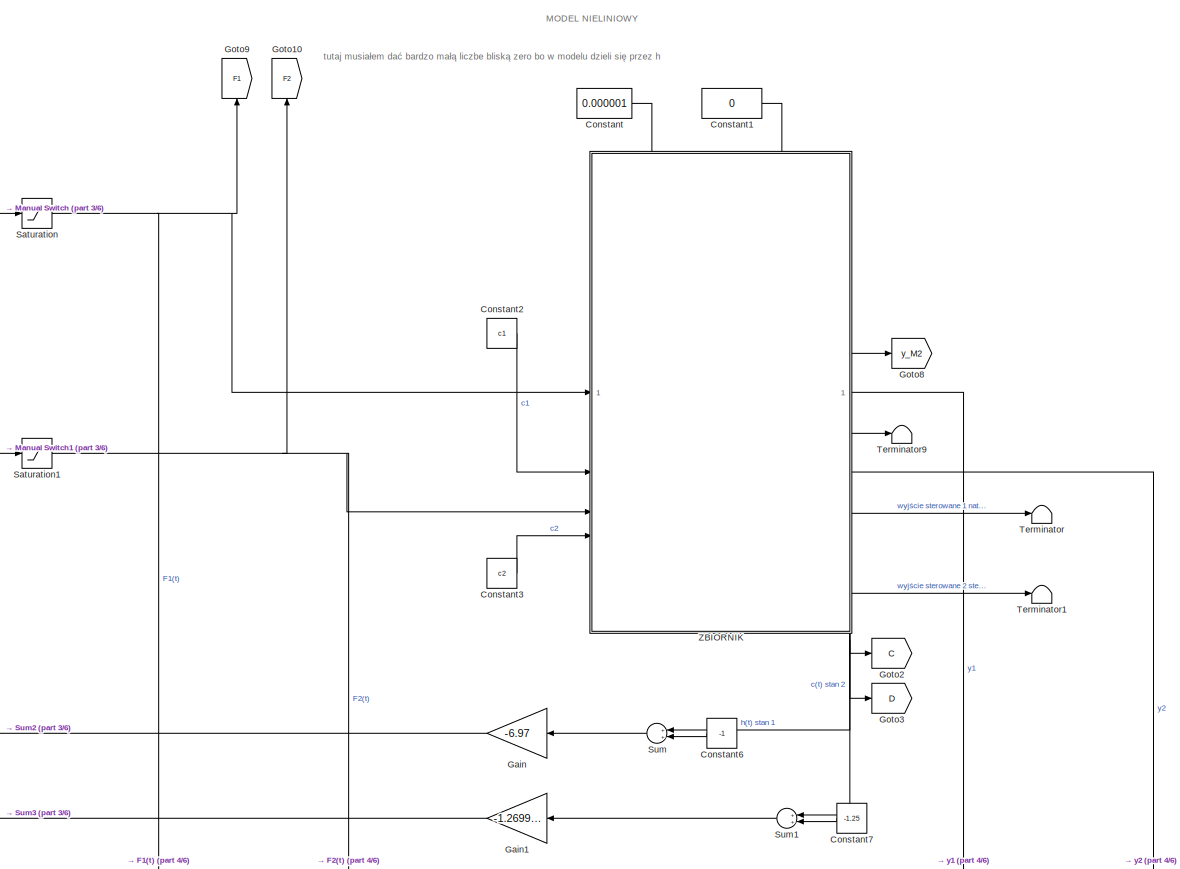
[diagram: root canvas - part 1/6, top center region]
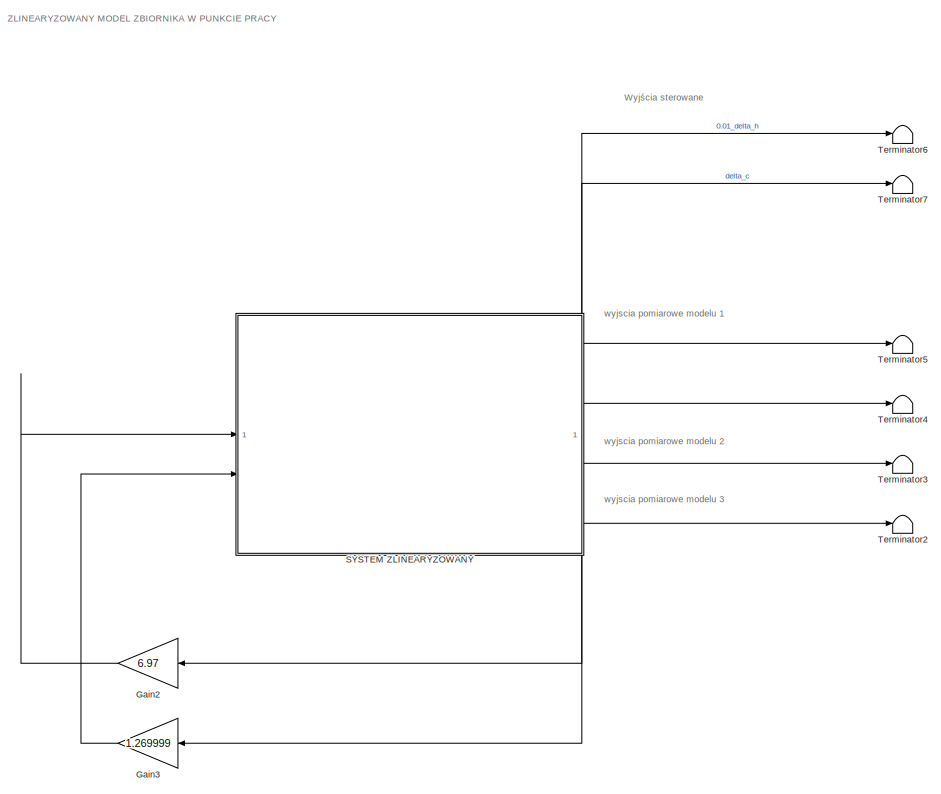
[diagram: root canvas - part 2/6, top right region]
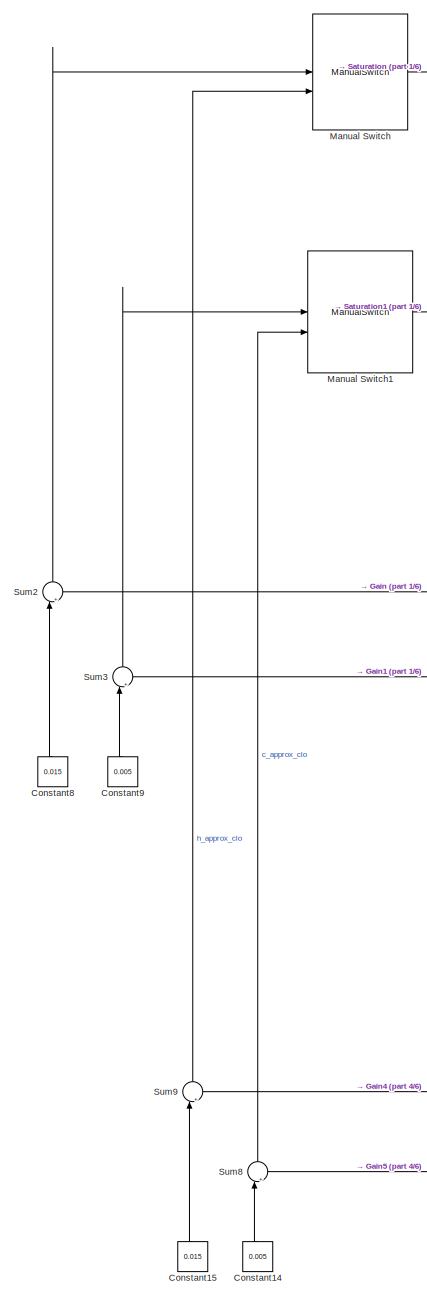
[diagram: root canvas - part 3/6, middle left region]
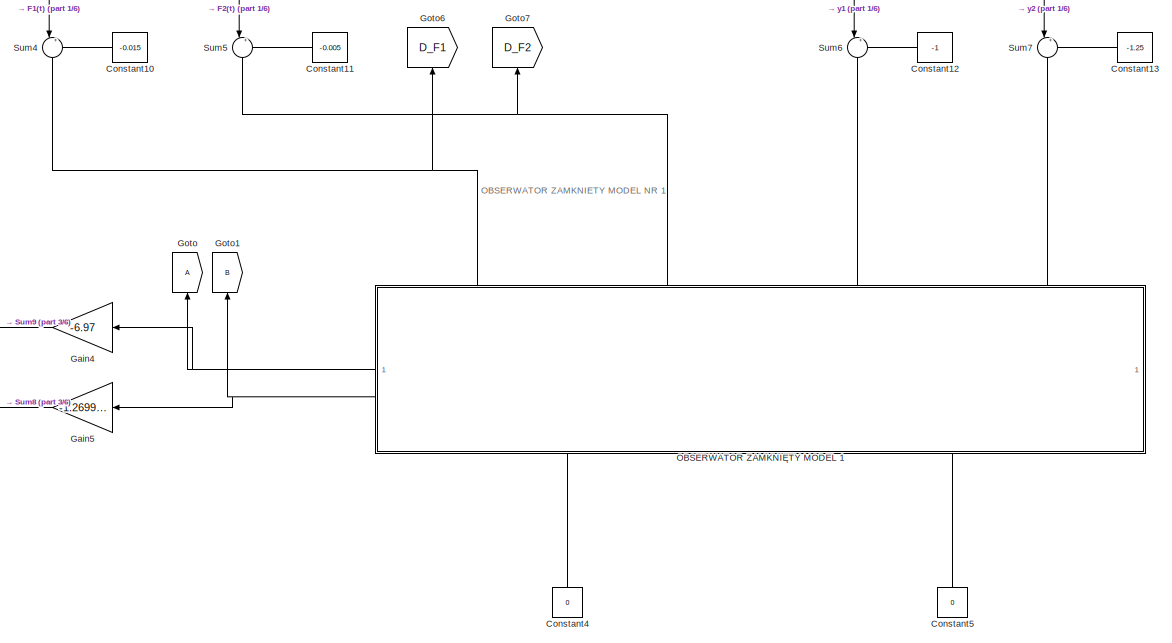
[diagram: root canvas - part 4/6, central region]
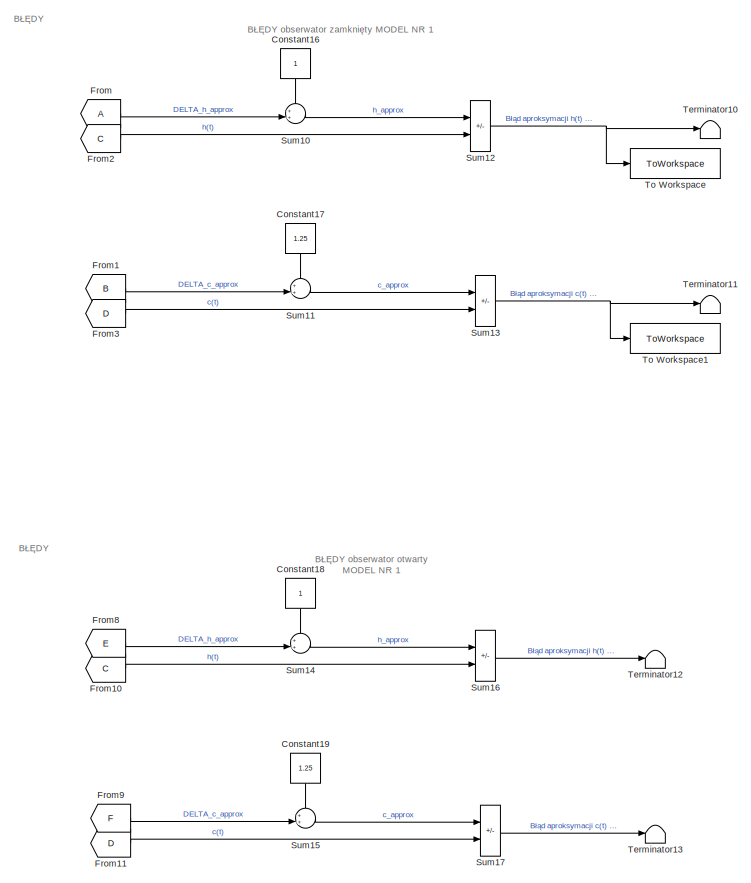
[diagram: root canvas - part 5/6, bottom right region]
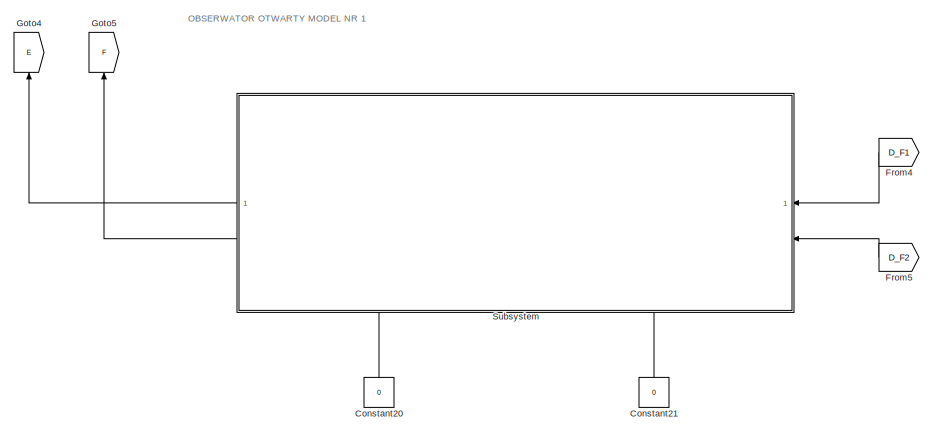
[diagram: root canvas - part 6/6, bottom center region]
MODEL slx_9ab2fc5ee544
KIND model
CONFIG AbsTol = auto
CONFIG EnableMultiTasking = off
CONFIG FixedStep = auto
CONFIG MaxStep = auto
CONFIG MinStep = auto
CONFIG RelTol = 1e-3
CONFIG SampleTimeConstraint = Unconstrained
CONFIG SolverName = VariableStepAuto
CONFIG StartTime = 0.0
CONFIG StopTime = end_time
BLOCK [Constant] Constant
  Value = 0.000001
BLOCK [Constant] Constant1
  Value = 0
BLOCK [Constant] Constant10
  NameLocation = top
  Value = -0.015
BLOCK [Constant] Constant11
  NameLocation = top
  Value = -0.005
BLOCK [Constant] Constant12
  NameLocation = top
  Value = -1
BLOCK [Constant] Constant13
  NameLocation = top
  Value = -1.25
BLOCK [Constant] Constant14
  NameLocation = right
  Value = 0.005
BLOCK [Constant] Constant15
  NameLocation = right
  Value = 0.015
BLOCK [Constant] Constant16
  NameLocation = left
BLOCK [Constant] Constant17
  NameLocation = left
  Value = 1.25
BLOCK [Constant] Constant18
  NameLocation = left
BLOCK [Constant] Constant19
  NameLocation = left
  Value = 1.25
BLOCK [Constant] Constant2
  Value = c1
BLOCK [Constant] Constant20
  NameLocation = right
  Value = 0
BLOCK [Constant] Constant21
  NameLocation = right
  Value = 0
BLOCK [Constant] Constant3
  Value = c2
BLOCK [Constant] Constant4
  NameLocation = right
  Value = 0
BLOCK [Constant] Constant5
  NameLocation = right
  Value = 0
BLOCK [Constant] Constant6
  NameLocation = top
  Value = -1
BLOCK [Constant] Constant7
  NameLocation = top
  Value = -1.25
BLOCK [Constant] Constant8
  NameLocation = right
  Value = 0.015
BLOCK [Constant] Constant9
  NameLocation = right
  Value = 0.005
BLOCK [From] From
BLOCK [From] From1
  GotoTag = B
BLOCK [From] From10
  GotoTag = C
BLOCK [From] From11
  GotoTag = D
BLOCK [From] From2
  GotoTag = C
BLOCK [From] From3
  GotoTag = D
BLOCK [From] From4
  GotoTag = D_F1
  NameLocation = top
BLOCK [From] From5
  GotoTag = D_F2
  NameLocation = top
BLOCK [From] From8
  GotoTag = E
BLOCK [From] From9
  GotoTag = F
BLOCK [Gain] Gain
  Gain = -6.97
  NameLocation = top
BLOCK [Gain] Gain1
  Gain = -1.269999
  NameLocation = top
BLOCK [Gain] Gain2
  Gain = 6.97
  NameLocation = top
BLOCK [Gain] Gain3
  Gain = 1.269999
  NameLocation = top
BLOCK [Gain] Gain4
  Gain = -6.97
  NameLocation = top
BLOCK [Gain] Gain5
  Gain = -1.269999
  NameLocation = top
BLOCK [Goto] Goto
  NameLocation = right
BLOCK [Goto] Goto1
  GotoTag = B
  NameLocation = right
BLOCK [Goto] Goto10
  GotoTag = F2
  NameLocation = right
BLOCK [Goto] Goto2
  GotoTag = C
BLOCK [Goto] Goto3
  GotoTag = D
BLOCK [Goto] Goto4
  GotoTag = E
  NameLocation = right
BLOCK [Goto] Goto5
  GotoTag = F
  NameLocation = right
BLOCK [Goto] Goto6
  GotoTag = D_F1
  NameLocation = right
BLOCK [Goto] Goto7
  GotoTag = D_F2
  NameLocation = right
BLOCK [Goto] Goto8
  GotoTag = y_M2
BLOCK [Goto] Goto9
  GotoTag = F1
  NameLocation = right
BLOCK [ManualSwitch] Manual Switch
  CurrentSetting = 0
BLOCK [ManualSwitch] Manual Switch1
  CurrentSetting = 0
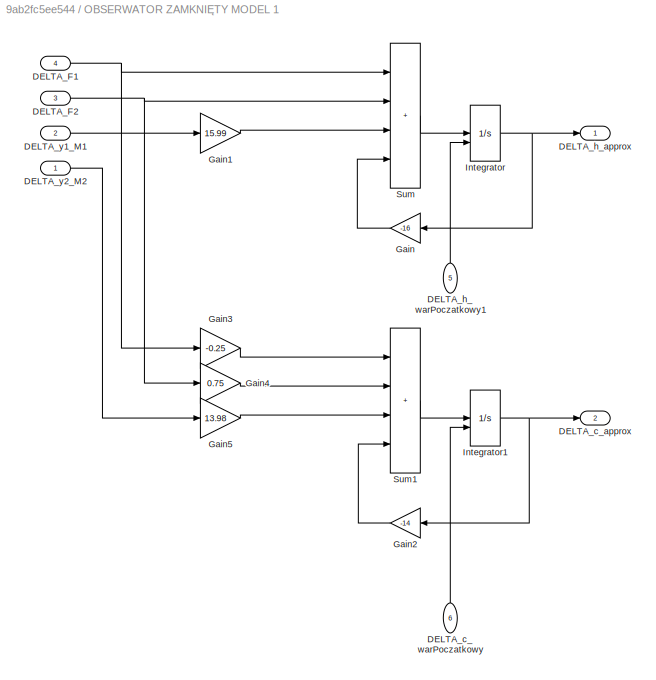
BLOCK [SubSystem] OBSERWATOR ZAMKNIĘTY MODEL 1
  PortSchema = {"entries":[{"content":{"sides":[{"content":{"connectorIds":[]},"type":"ConnectorPlacement.EquallySpacedRectSide","uuid":"df9a0dc1-4b9c-40dc-a757-6b1a6b9aa6ed"},{"content":{"connectorIds":["Out1","Out2"],"side":"RIGHT"},"type":"ConnectorPlacement.EquallySpacedRectSide","uuid":"5cba16cf-a15e-4045-92be-3e6ecad2ae7f"},{"content":{"connectorIds":["In1","In2","In3","In4"],"side":"TOP"},"type":"Connecto...<+564ch>
BLOCK [Inport] OBSERWATOR ZAMKNIĘTY MODEL 1/DELTA_F1
  Port = 4
BLOCK [Inport] OBSERWATOR ZAMKNIĘTY MODEL 1/DELTA_F2
  Port = 3
BLOCK [Outport] OBSERWATOR ZAMKNIĘTY MODEL 1/DELTA_c_approx
  Port = 2
BLOCK [Inport] OBSERWATOR ZAMKNIĘTY MODEL 1/DELTA_c_warPoczatkowy
  NameLocation = right
  Port = 6
BLOCK [Outport] OBSERWATOR ZAMKNIĘTY MODEL 1/DELTA_h_approx
BLOCK [Inport] OBSERWATOR ZAMKNIĘTY MODEL 1/DELTA_h_warPoczatkowy1
  NameLocation = right
  Port = 5
BLOCK [Inport] OBSERWATOR ZAMKNIĘTY MODEL 1/DELTA_y1_M1
  Port = 2
BLOCK [Inport] OBSERWATOR ZAMKNIĘTY MODEL 1/DELTA_y2_M2
BLOCK [Gain] OBSERWATOR ZAMKNIĘTY MODEL 1/Gain
  Gain = -16
  NameLocation = top
BLOCK [Gain] OBSERWATOR ZAMKNIĘTY MODEL 1/Gain1
  Gain = 15.99
BLOCK [Gain] OBSERWATOR ZAMKNIĘTY MODEL 1/Gain2
  Gain = -14
  NameLocation = top
BLOCK [Gain] OBSERWATOR ZAMKNIĘTY MODEL 1/Gain3
  Gain = -0.25
BLOCK [Gain] OBSERWATOR ZAMKNIĘTY MODEL 1/Gain4
  Gain = 0.75
BLOCK [Gain] OBSERWATOR ZAMKNIĘTY MODEL 1/Gain5
  Gain = 13.98
BLOCK [Integrator] OBSERWATOR ZAMKNIĘTY MODEL 1/Integrator
  InitialConditionSource = external
BLOCK [Integrator] OBSERWATOR ZAMKNIĘTY MODEL 1/Integrator1
  InitialConditionSource = external
BLOCK [Sum] OBSERWATOR ZAMKNIĘTY MODEL 1/Sum
  IconShape = rectangular
  Inputs = ++++
BLOCK [Sum] OBSERWATOR ZAMKNIĘTY MODEL 1/Sum1
  IconShape = rectangular
  Inputs = ++++
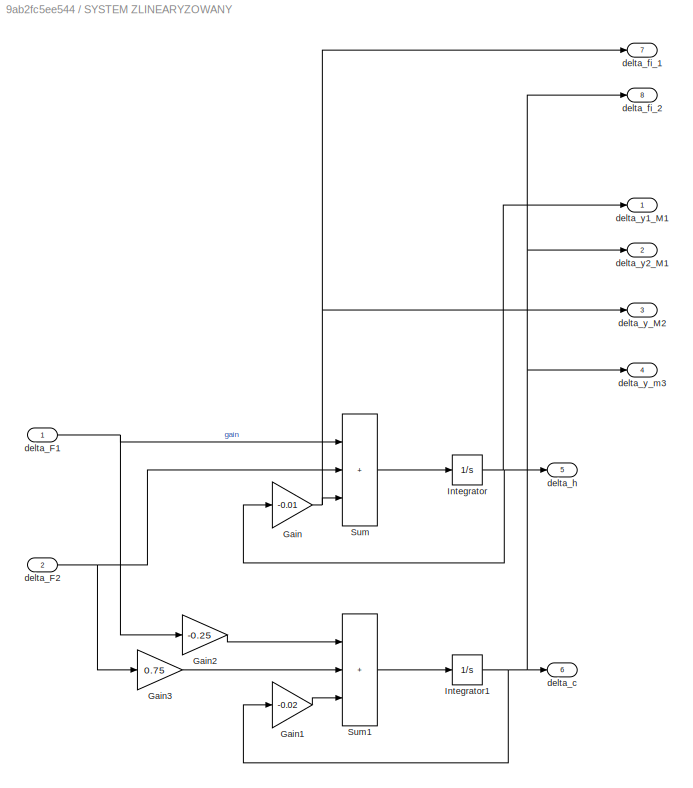
BLOCK [SubSystem] SYSTEM ZLINEARYZOWANY
  PortSchema = {"entries":[{"content":{"sides":[{"content":{"connectorIds":["In1","In2"]},"type":"ConnectorPlacement.EquallySpacedRectSide","uuid":"d54e25d2-cd73-45e0-9808-ca3ea5dc6cf7"},{"content":{"connectorIds":["Out1","Out2","Out3","Out4"],"side":"RIGHT"},"type":"ConnectorPlacement.EquallySpacedRectSide","uuid":"8f74ab67-fea9-4695-8f57-14f1d1e6aeae"},{"content":{"connectorIds":["Out7","Out8"],"side":"TOP"},"...<+581ch>
BLOCK [Gain] SYSTEM ZLINEARYZOWANY/Gain
  Gain = -0.01
BLOCK [Gain] SYSTEM ZLINEARYZOWANY/Gain1
  Gain = -0.02
BLOCK [Gain] SYSTEM ZLINEARYZOWANY/Gain2
  Gain = -0.25
BLOCK [Gain] SYSTEM ZLINEARYZOWANY/Gain3
  Gain = 0.75
BLOCK [Integrator] SYSTEM ZLINEARYZOWANY/Integrator
BLOCK [Integrator] SYSTEM ZLINEARYZOWANY/Integrator1
BLOCK [Sum] SYSTEM ZLINEARYZOWANY/Sum
  IconShape = rectangular
  Inputs = +++
BLOCK [Sum] SYSTEM ZLINEARYZOWANY/Sum1
  IconShape = rectangular
  Inputs = +++
BLOCK [Inport] SYSTEM ZLINEARYZOWANY/delta_F1
BLOCK [Inport] SYSTEM ZLINEARYZOWANY/delta_F2
  Port = 2
BLOCK [Outport] SYSTEM ZLINEARYZOWANY/delta_c
  Port = 6
BLOCK [Outport] SYSTEM ZLINEARYZOWANY/delta_fi_1
  Port = 7
BLOCK [Outport] SYSTEM ZLINEARYZOWANY/delta_fi_2
  Port = 8
BLOCK [Outport] SYSTEM ZLINEARYZOWANY/delta_h
  Port = 5
BLOCK [Outport] SYSTEM ZLINEARYZOWANY/delta_y1_M1
BLOCK [Outport] SYSTEM ZLINEARYZOWANY/delta_y2_M1
  Port = 2
BLOCK [Outport] SYSTEM ZLINEARYZOWANY/delta_y_M2
  Port = 3
BLOCK [Outport] SYSTEM ZLINEARYZOWANY/delta_y_m3
  Port = 4
BLOCK [Saturate] Saturation
  LowerLimit = 0
  UpperLimit = inf
BLOCK [Saturate] Saturation1
  LowerLimit = 0
  UpperLimit = inf
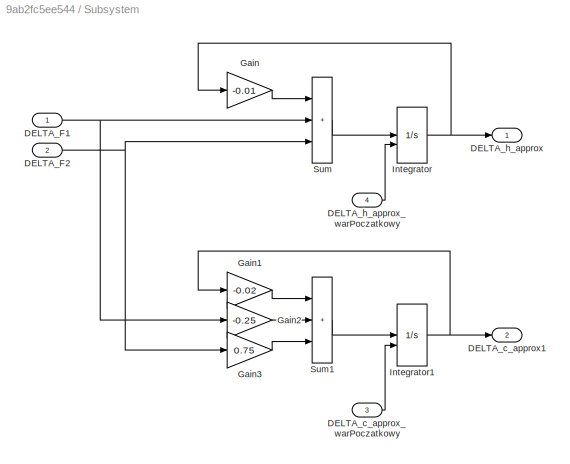
BLOCK [SubSystem] Subsystem
  NameLocation = top
  PortSchema = {"entries":[{"content":{"sides":[{"content":{"connectorIds":["In1","In2"]},"type":"ConnectorPlacement.EquallySpacedRectSide","uuid":"9da57aff-d8ed-41ac-be0f-7bb7d22a2d6d"},{"content":{"connectorIds":["Out1","Out2"],"side":"RIGHT"},"type":"ConnectorPlacement.EquallySpacedRectSide","uuid":"4a485f9a-c196-4acf-9f6f-00c6dbb16d48"},{"content":{"connectorIds":[],"side":"TOP"},"type":"ConnectorPlacement.E...<+552ch>
BLOCK [Inport] Subsystem/DELTA_F1
BLOCK [Inport] Subsystem/DELTA_F2
  Port = 2
BLOCK [Outport] Subsystem/DELTA_c_approx1
  Port = 2
BLOCK [Inport] Subsystem/DELTA_c_approx_warPoczatkowy
  Port = 3
BLOCK [Outport] Subsystem/DELTA_h_approx
BLOCK [Inport] Subsystem/DELTA_h_approx_warPoczatkowy
  Port = 4
BLOCK [Gain] Subsystem/Gain
  Gain = -0.01
BLOCK [Gain] Subsystem/Gain1
  Gain = -0.02
BLOCK [Gain] Subsystem/Gain2
  Gain = -0.25
BLOCK [Gain] Subsystem/Gain3
  Gain = 0.75
BLOCK [Integrator] Subsystem/Integrator
  InitialConditionSource = external
BLOCK [Integrator] Subsystem/Integrator1
  InitialConditionSource = external
BLOCK [Sum] Subsystem/Sum
  IconShape = rectangular
  Inputs = +++
BLOCK [Sum] Subsystem/Sum1
  IconShape = rectangular
  Inputs = +++
BLOCK [Sum] Sum
  Inputs = ++|
  NameLocation = top
BLOCK [Sum] Sum1
  Inputs = ++|
  NameLocation = top
BLOCK [Sum] Sum10
  Inputs = ++|
BLOCK [Sum] Sum11
  Inputs = ++|
BLOCK [Sum] Sum12
  IconShape = rectangular
  Inputs = +-
BLOCK [Sum] Sum13
  IconShape = rectangular
  Inputs = +-
BLOCK [Sum] Sum14
  Inputs = ++|
BLOCK [Sum] Sum15
  Inputs = ++|
BLOCK [Sum] Sum16
  IconShape = rectangular
  Inputs = +-
BLOCK [Sum] Sum17
  IconShape = rectangular
  Inputs = +-
BLOCK [Sum] Sum2
  Inputs = |++
  NameLocation = right
BLOCK [Sum] Sum3
  Inputs = |++
  NameLocation = right
BLOCK [Sum] Sum4
  Inputs = |++
  NameLocation = left
BLOCK [Sum] Sum5
  Inputs = |++
  NameLocation = left
BLOCK [Sum] Sum6
  Inputs = |++
  NameLocation = left
BLOCK [Sum] Sum7
  Inputs = |++
  NameLocation = left
BLOCK [Sum] Sum8
  Inputs = |++
  NameLocation = right
BLOCK [Sum] Sum9
  Inputs = |++
  NameLocation = right
BLOCK [Terminator] Terminator
BLOCK [Terminator] Terminator1
BLOCK [Terminator] Terminator10
BLOCK [Terminator] Terminator11
BLOCK [Terminator] Terminator12
BLOCK [Terminator] Terminator13
BLOCK [Terminator] Terminator2
BLOCK [Terminator] Terminator3
BLOCK [Terminator] Terminator4
BLOCK [Terminator] Terminator5
BLOCK [Terminator] Terminator6
BLOCK [Terminator] Terminator7
BLOCK [Terminator] Terminator9
BLOCK [ToWorkspace] To Workspace
  Commented = on
  FixptAsFi = on
  MaxDataPoints = inf
  SampleTime = -1
  SaveFormat = Timeseries
  VariableName = CLO_error_x1
BLOCK [ToWorkspace] To Workspace1
  Commented = on
  FixptAsFi = on
  MaxDataPoints = inf
  SampleTime = -1
  SaveFormat = Timeseries
  VariableName = CLO_error_x2
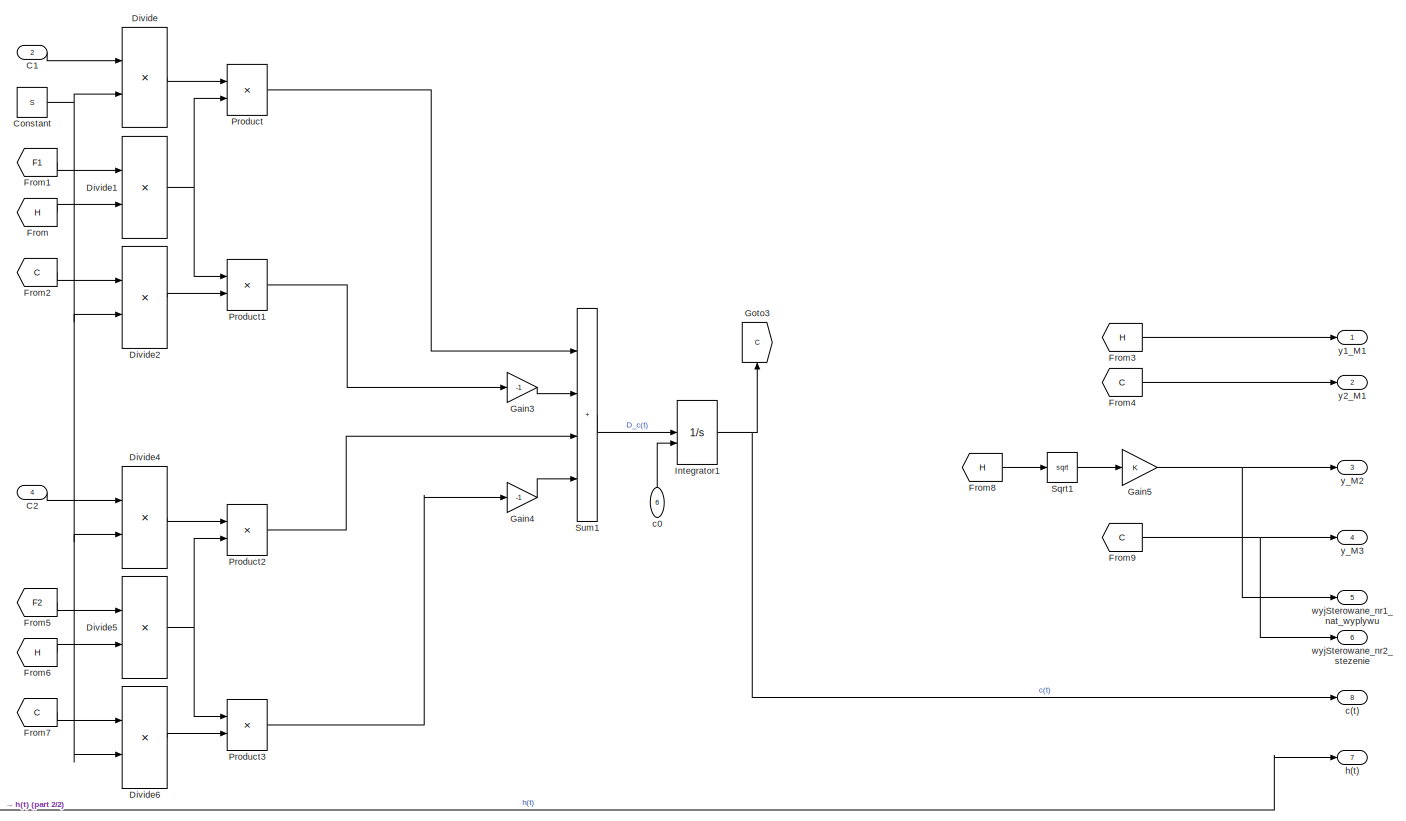
[diagram: ZBIORNIK - part 1/2, center side, full height]
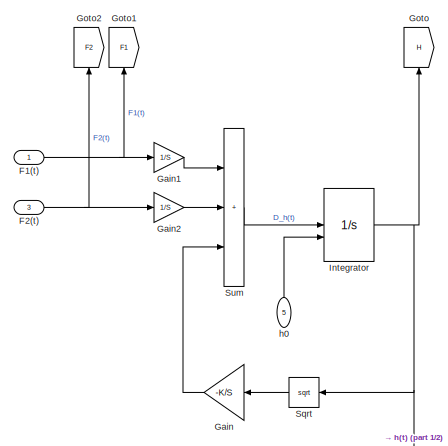
[diagram: ZBIORNIK - part 2/2, middle left region]
BLOCK [SubSystem] ZBIORNIK
  PortSchema = {"entries":[{"content":{"sides":[{"content":{"connectorIds":["In1","In2","In3","In4"]},"type":"ConnectorPlacement.EquallySpacedRectSide","uuid":"d7534cdc-3a83-4663-9669-478cefb7ba54"},{"content":{"connectorIds":["Out1","Out2","Out3","Out4","Out5","Out6"],"side":"RIGHT"},"type":"ConnectorPlacement.EquallySpacedRectSide","uuid":"43aa4112-be2a-4a64-a360-86159253405e"},{"content":{"connectorIds":["In5...<+605ch>
BLOCK [Inport] ZBIORNIK/C1
  Port = 2
BLOCK [Inport] ZBIORNIK/C2
  Port = 4
BLOCK [Constant] ZBIORNIK/Constant
  Value = S
BLOCK [Product] ZBIORNIK/Divide
  Inputs = */
BLOCK [Product] ZBIORNIK/Divide1
  Inputs = */
BLOCK [Product] ZBIORNIK/Divide2
  Inputs = */
BLOCK [Product] ZBIORNIK/Divide4
  Inputs = */
BLOCK [Product] ZBIORNIK/Divide5
  Inputs = */
BLOCK [Product] ZBIORNIK/Divide6
  Inputs = */
BLOCK [Inport] ZBIORNIK/F1(t)
BLOCK [Inport] ZBIORNIK/F2(t)
  Port = 3
BLOCK [From] ZBIORNIK/From
  GotoTag = H
BLOCK [From] ZBIORNIK/From1
  GotoTag = F1
BLOCK [From] ZBIORNIK/From2
  GotoTag = C
BLOCK [From] ZBIORNIK/From3
  GotoTag = H
BLOCK [From] ZBIORNIK/From4
  GotoTag = C
BLOCK [From] ZBIORNIK/From5
  GotoTag = F2
BLOCK [From] ZBIORNIK/From6
  GotoTag = H
BLOCK [From] ZBIORNIK/From7
  GotoTag = C
BLOCK [From] ZBIORNIK/From8
  GotoTag = H
BLOCK [From] ZBIORNIK/From9
  GotoTag = C
BLOCK [Gain] ZBIORNIK/Gain
  Gain = -K/S
  NameLocation = top
BLOCK [Gain] ZBIORNIK/Gain1
  Gain = 1/S
BLOCK [Gain] ZBIORNIK/Gain2
  Gain = 1/S
BLOCK [Gain] ZBIORNIK/Gain3
  Gain = -1
BLOCK [Gain] ZBIORNIK/Gain4
  Gain = -1
BLOCK [Gain] ZBIORNIK/Gain5
  Gain = K
BLOCK [Goto] ZBIORNIK/Goto
  GotoTag = H
  NameLocation = right
BLOCK [Goto] ZBIORNIK/Goto1
  GotoTag = F1
  NameLocation = right
BLOCK [Goto] ZBIORNIK/Goto2
  GotoTag = F2
  NameLocation = right
BLOCK [Goto] ZBIORNIK/Goto3
  GotoTag = C
  NameLocation = right
BLOCK [Integrator] ZBIORNIK/Integrator
  InitialConditionSource = external
BLOCK [Integrator] ZBIORNIK/Integrator1
  InitialConditionSource = external
BLOCK [Product] ZBIORNIK/Product
BLOCK [Product] ZBIORNIK/Product1
BLOCK [Product] ZBIORNIK/Product2
BLOCK [Product] ZBIORNIK/Product3
BLOCK [Sqrt] ZBIORNIK/Sqrt
  NameLocation = top
  OutputSignalType = real
BLOCK [Sqrt] ZBIORNIK/Sqrt1
BLOCK [Sum] ZBIORNIK/Sum
  IconShape = rectangular
  Inputs = +++
BLOCK [Sum] ZBIORNIK/Sum1
  IconShape = rectangular
  Inputs = ++++
BLOCK [Outport] ZBIORNIK/c(t)
  Port = 8
BLOCK [Inport] ZBIORNIK/c0
  NameLocation = right
  Port = 6
BLOCK [Outport] ZBIORNIK/h(t)
  Port = 7
BLOCK [Inport] ZBIORNIK/h0
  NameLocation = right
  Port = 5
BLOCK [Outport] ZBIORNIK/wyjSterowane_nr1_nat_wyplywu
  Port = 5
BLOCK [Outport] ZBIORNIK/wyjSterowane_nr2_stezenie
  Port = 6
BLOCK [Outport] ZBIORNIK/y1_M1
BLOCK [Outport] ZBIORNIK/y2_M1
  Port = 2
BLOCK [Outport] ZBIORNIK/y_M2
  Port = 3
BLOCK [Outport] ZBIORNIK/y_M3
  Port = 4
ANNOTATION (root): BŁĘDY obserwator otwarty MODEL NR 1
ANNOTATION (root): BŁĘDY obserwator zamknięty MODEL NR 1
ANNOTATION (root): OBSERWATOR OTWARTY MODEL NR 1
ANNOTATION (root): OBSERWATOR ZAMKNIETY MODEL NR 1
ANNOTATION (root): ZLINEARYZOWANY MODEL ZBIORNIKA W PUNKCIE PRACY
ANNOTATION (root): MODEL NIELINIOWY
ANNOTATION (root): BŁĘDY
ANNOTATION (root): Wyjścia sterowane
ANNOTATION (root): tutaj musiałem dać bardzo małą liczbe bliską zero bo w modelu dzieli się przez h
ANNOTATION (root): wyjscia pomiarowe modelu 1
ANNOTATION (root): wyjscia pomiarowe modelu 2
ANNOTATION (root): wyjscia pomiarowe modelu 3
LINE Constant10:1 -> Sum4:2
LINE Constant11:1 -> Sum5:2
LINE Constant12:1 -> Sum6:2
LINE Constant13:1 -> Sum7:2
LINE Constant14:1 -> Sum8:1
LINE Constant15:1 -> Sum9:1
LINE Constant16:1 -> Sum10:1
LINE Constant17:1 -> Sum11:1
LINE Constant18:1 -> Sum14:1
LINE Constant19:1 -> Sum15:1
LINE Constant1:1 -> ZBIORNIK:6
LINE Constant20:1 -> Subsystem:4
LINE Constant21:1 -> Subsystem:3
LINE Constant2:1 -> ZBIORNIK:2
LINE Constant3:1 -> ZBIORNIK:4
LINE Constant4:1 -> OBSERWATOR ZAMKNIĘTY MODEL 1:6
LINE Constant5:1 -> OBSERWATOR ZAMKNIĘTY MODEL 1:5
LINE Constant6:1 -> Sum:2
LINE Constant7:1 -> Sum1:2
LINE Constant8:1 -> Sum2:1
LINE Constant9:1 -> Sum3:1
LINE Constant:1 -> ZBIORNIK:5
LINE From10:1 -> Sum16:2
LINE From11:1 -> Sum17:2
LINE From1:1 -> Sum11:2
LINE From2:1 -> Sum12:2
LINE From3:1 -> Sum13:2
LINE From4:1 -> Subsystem:1
LINE From5:1 -> Subsystem:2
LINE From8:1 -> Sum14:2
LINE From9:1 -> Sum15:2
LINE From:1 -> Sum10:2
LINE Gain1:1 -> Sum3:2
LINE Gain2:1 -> SYSTEM ZLINEARYZOWANY:1
LINE Gain3:1 -> SYSTEM ZLINEARYZOWANY:2
LINE Gain4:1 -> Sum9:2
LINE Gain5:1 -> Sum8:2
LINE Gain:1 -> Sum2:2
LINE Manual Switch1:1 -> Saturation1:1
LINE Manual Switch:1 -> Saturation:1
NET OBSERWATOR ZAMKNIĘTY MODEL 1/DELTA_F1:1 -> OBSERWATOR ZAMKNIĘTY MODEL 1/Gain3:1, OBSERWATOR ZAMKNIĘTY MODEL 1/Sum:1
NET OBSERWATOR ZAMKNIĘTY MODEL 1/DELTA_F2:1 -> OBSERWATOR ZAMKNIĘTY MODEL 1/Gain4:1, OBSERWATOR ZAMKNIĘTY MODEL 1/Sum:2
LINE OBSERWATOR ZAMKNIĘTY MODEL 1/DELTA_c_warPoczatkowy:1 -> OBSERWATOR ZAMKNIĘTY MODEL 1/Integrator1:2
LINE OBSERWATOR ZAMKNIĘTY MODEL 1/DELTA_h_warPoczatkowy1:1 -> OBSERWATOR ZAMKNIĘTY MODEL 1/Integrator:2
LINE OBSERWATOR ZAMKNIĘTY MODEL 1/DELTA_y1_M1:1 -> OBSERWATOR ZAMKNIĘTY MODEL 1/Gain1:1
LINE OBSERWATOR ZAMKNIĘTY MODEL 1/DELTA_y2_M2:1 -> OBSERWATOR ZAMKNIĘTY MODEL 1/Gain5:1
LINE OBSERWATOR ZAMKNIĘTY MODEL 1/Gain1:1 -> OBSERWATOR ZAMKNIĘTY MODEL 1/Sum:3
LINE OBSERWATOR ZAMKNIĘTY MODEL 1/Gain2:1 -> OBSERWATOR ZAMKNIĘTY MODEL 1/Sum1:4
LINE OBSERWATOR ZAMKNIĘTY MODEL 1/Gain3:1 -> OBSERWATOR ZAMKNIĘTY MODEL 1/Sum1:1
LINE OBSERWATOR ZAMKNIĘTY MODEL 1/Gain4:1 -> OBSERWATOR ZAMKNIĘTY MODEL 1/Sum1:2
LINE OBSERWATOR ZAMKNIĘTY MODEL 1/Gain5:1 -> OBSERWATOR ZAMKNIĘTY MODEL 1/Sum1:3
LINE OBSERWATOR ZAMKNIĘTY MODEL 1/Gain:1 -> OBSERWATOR ZAMKNIĘTY MODEL 1/Sum:4
NET OBSERWATOR ZAMKNIĘTY MODEL 1/Integrator1:1 -> OBSERWATOR ZAMKNIĘTY MODEL 1/DELTA_c_approx:1, OBSERWATOR ZAMKNIĘTY MODEL 1/Gain2:1
NET OBSERWATOR ZAMKNIĘTY MODEL 1/Integrator:1 -> OBSERWATOR ZAMKNIĘTY MODEL 1/DELTA_h_approx:1, OBSERWATOR ZAMKNIĘTY MODEL 1/Gain:1
LINE OBSERWATOR ZAMKNIĘTY MODEL 1/Sum1:1 -> OBSERWATOR ZAMKNIĘTY MODEL 1/Integrator1:1
LINE OBSERWATOR ZAMKNIĘTY MODEL 1/Sum:1 -> OBSERWATOR ZAMKNIĘTY MODEL 1/Integrator:1
NET OBSERWATOR ZAMKNIĘTY MODEL 1:1 -> Gain4:1, Goto:1
NET OBSERWATOR ZAMKNIĘTY MODEL 1:2 -> Gain5:1, Goto1:1
LINE SYSTEM ZLINEARYZOWANY/Gain1:1 -> SYSTEM ZLINEARYZOWANY/Sum1:3
LINE SYSTEM ZLINEARYZOWANY/Gain2:1 -> SYSTEM ZLINEARYZOWANY/Sum1:1
LINE SYSTEM ZLINEARYZOWANY/Gain3:1 -> SYSTEM ZLINEARYZOWANY/Sum1:2
NET SYSTEM ZLINEARYZOWANY/Gain:1 -> SYSTEM ZLINEARYZOWANY/Sum:3, SYSTEM ZLINEARYZOWANY/delta_fi_1:1, SYSTEM ZLINEARYZOWANY/delta_y_M2:1
NET SYSTEM ZLINEARYZOWANY/Integrator1:1 -> SYSTEM ZLINEARYZOWANY/Gain1:1, SYSTEM ZLINEARYZOWANY/delta_c:1, SYSTEM ZLINEARYZOWANY/delta_fi_2:1, SYSTEM ZLINEARYZOWANY/delta_y2_M1:1, SYSTEM ZLINEARYZOWANY/delta_y_m3:1
NET SYSTEM ZLINEARYZOWANY/Integrator:1 -> SYSTEM ZLINEARYZOWANY/Gain:1, SYSTEM ZLINEARYZOWANY/delta_h:1, SYSTEM ZLINEARYZOWANY/delta_y1_M1:1
LINE SYSTEM ZLINEARYZOWANY/Sum1:1 -> SYSTEM ZLINEARYZOWANY/Integrator1:1
LINE SYSTEM ZLINEARYZOWANY/Sum:1 -> SYSTEM ZLINEARYZOWANY/Integrator:1
NET SYSTEM ZLINEARYZOWANY/delta_F1:1 -> SYSTEM ZLINEARYZOWANY/Gain2:1, SYSTEM ZLINEARYZOWANY/Sum:1
NET SYSTEM ZLINEARYZOWANY/delta_F2:1 -> SYSTEM ZLINEARYZOWANY/Gain3:1, SYSTEM ZLINEARYZOWANY/Sum:2
LINE SYSTEM ZLINEARYZOWANY:1 -> Terminator5:1
LINE SYSTEM ZLINEARYZOWANY:2 -> Terminator4:1
LINE SYSTEM ZLINEARYZOWANY:3 -> Terminator3:1
LINE SYSTEM ZLINEARYZOWANY:4 -> Terminator2:1
LINE SYSTEM ZLINEARYZOWANY:5 -> Gain2:1
LINE SYSTEM ZLINEARYZOWANY:6 -> Gain3:1
LINE SYSTEM ZLINEARYZOWANY:7 -> Terminator6:1
LINE SYSTEM ZLINEARYZOWANY:8 -> Terminator7:1
NET Saturation1:1 -> Goto10:1, Sum5:1, ZBIORNIK:3
NET Saturation:1 -> Goto9:1, Sum4:1, ZBIORNIK:1
NET Subsystem/DELTA_F1:1 -> Subsystem/Gain2:1, Subsystem/Sum:2
NET Subsystem/DELTA_F2:1 -> Subsystem/Gain3:1, Subsystem/Sum:3
LINE Subsystem/DELTA_c_approx_warPoczatkowy:1 -> Subsystem/Integrator1:2
LINE Subsystem/DELTA_h_approx_warPoczatkowy:1 -> Subsystem/Integrator:2
LINE Subsystem/Gain1:1 -> Subsystem/Sum1:1
LINE Subsystem/Gain2:1 -> Subsystem/Sum1:2
LINE Subsystem/Gain3:1 -> Subsystem/Sum1:3
LINE Subsystem/Gain:1 -> Subsystem/Sum:1
NET Subsystem/Integrator1:1 -> Subsystem/DELTA_c_approx1:1, Subsystem/Gain1:1
NET Subsystem/Integrator:1 -> Subsystem/DELTA_h_approx:1, Subsystem/Gain:1
LINE Subsystem/Sum1:1 -> Subsystem/Integrator1:1
LINE Subsystem/Sum:1 -> Subsystem/Integrator:1
LINE Subsystem:1 -> Goto4:1
LINE Subsystem:2 -> Goto5:1
LINE Sum10:1 -> Sum12:1
LINE Sum11:1 -> Sum13:1
NET Sum12:1 -> Terminator10:1, To Workspace:1
NET Sum13:1 -> Terminator11:1, To Workspace1:1
LINE Sum14:1 -> Sum16:1
LINE Sum15:1 -> Sum17:1
LINE Sum16:1 -> Terminator12:1
LINE Sum17:1 -> Terminator13:1
LINE Sum1:1 -> Gain1:1
LINE Sum2:1 -> Manual Switch:1
LINE Sum3:1 -> Manual Switch1:1
NET Sum4:1 -> Goto6:1, OBSERWATOR ZAMKNIĘTY MODEL 1:4
NET Sum5:1 -> Goto7:1, OBSERWATOR ZAMKNIĘTY MODEL 1:3
LINE Sum6:1 -> OBSERWATOR ZAMKNIĘTY MODEL 1:2
LINE Sum7:1 -> OBSERWATOR ZAMKNIĘTY MODEL 1:1
LINE Sum8:1 -> Manual Switch1:2
LINE Sum9:1 -> Manual Switch:2
LINE Sum:1 -> Gain:1
LINE ZBIORNIK/C1:1 -> ZBIORNIK/Divide:1
LINE ZBIORNIK/C2:1 -> ZBIORNIK/Divide4:1
NET ZBIORNIK/Constant:1 -> ZBIORNIK/Divide2:2, ZBIORNIK/Divide4:2, ZBIORNIK/Divide6:2, ZBIORNIK/Divide:2
NET ZBIORNIK/Divide1:1 -> ZBIORNIK/Product1:1, ZBIORNIK/Product:2
LINE ZBIORNIK/Divide2:1 -> ZBIORNIK/Product1:2
LINE ZBIORNIK/Divide4:1 -> ZBIORNIK/Product2:1
NET ZBIORNIK/Divide5:1 -> ZBIORNIK/Product2:2, ZBIORNIK/Product3:1
LINE ZBIORNIK/Divide6:1 -> ZBIORNIK/Product3:2
LINE ZBIORNIK/Divide:1 -> ZBIORNIK/Product:1
NET ZBIORNIK/F1(t):1 -> ZBIORNIK/Gain1:1, ZBIORNIK/Goto1:1
NET ZBIORNIK/F2(t):1 -> ZBIORNIK/Gain2:1, ZBIORNIK/Goto2:1
LINE ZBIORNIK/From1:1 -> ZBIORNIK/Divide1:1
LINE ZBIORNIK/From2:1 -> ZBIORNIK/Divide2:1
LINE ZBIORNIK/From3:1 -> ZBIORNIK/y1_M1:1
LINE ZBIORNIK/From4:1 -> ZBIORNIK/y2_M1:1
LINE ZBIORNIK/From5:1 -> ZBIORNIK/Divide5:1
LINE ZBIORNIK/From6:1 -> ZBIORNIK/Divide5:2
LINE ZBIORNIK/From7:1 -> ZBIORNIK/Divide6:1
LINE ZBIORNIK/From8:1 -> ZBIORNIK/Sqrt1:1
NET ZBIORNIK/From9:1 -> ZBIORNIK/wyjSterowane_nr2_stezenie:1, ZBIORNIK/y_M3:1
LINE ZBIORNIK/From:1 -> ZBIORNIK/Divide1:2
LINE ZBIORNIK/Gain1:1 -> ZBIORNIK/Sum:1
LINE ZBIORNIK/Gain2:1 -> ZBIORNIK/Sum:2
LINE ZBIORNIK/Gain3:1 -> ZBIORNIK/Sum1:2
LINE ZBIORNIK/Gain4:1 -> ZBIORNIK/Sum1:4
NET ZBIORNIK/Gain5:1 -> ZBIORNIK/wyjSterowane_nr1_nat_wyplywu:1, ZBIORNIK/y_M2:1
LINE ZBIORNIK/Gain:1 -> ZBIORNIK/Sum:3
NET ZBIORNIK/Integrator1:1 -> ZBIORNIK/Goto3:1, ZBIORNIK/c(t):1
NET ZBIORNIK/Integrator:1 -> ZBIORNIK/Goto:1, ZBIORNIK/Sqrt:1, ZBIORNIK/h(t):1
LINE ZBIORNIK/Product1:1 -> ZBIORNIK/Gain3:1
LINE ZBIORNIK/Product2:1 -> ZBIORNIK/Sum1:3
LINE ZBIORNIK/Product3:1 -> ZBIORNIK/Gain4:1
LINE ZBIORNIK/Product:1 -> ZBIORNIK/Sum1:1
LINE ZBIORNIK/Sqrt1:1 -> ZBIORNIK/Gain5:1
LINE ZBIORNIK/Sqrt:1 -> ZBIORNIK/Gain:1
LINE ZBIORNIK/Sum1:1 -> ZBIORNIK/Integrator1:1
LINE ZBIORNIK/Sum:1 -> ZBIORNIK/Integrator:1
LINE ZBIORNIK/c0:1 -> ZBIORNIK/Integrator1:2
LINE ZBIORNIK/h0:1 -> ZBIORNIK/Integrator:2
LINE ZBIORNIK:1 -> Sum6:1
LINE ZBIORNIK:2 -> Sum7:1
LINE ZBIORNIK:3 -> Goto8:1
LINE ZBIORNIK:4 -> Terminator9:1
LINE ZBIORNIK:5 -> Terminator:1
LINE ZBIORNIK:6 -> Terminator1:1
NET ZBIORNIK:7 -> Goto2:1, Sum:1
NET ZBIORNIK:8 -> Goto3:1, Sum1:1
note: NET lines group one-source signal fan-out (src -> all destinations, sorted); 1:1 wires keep LINE
